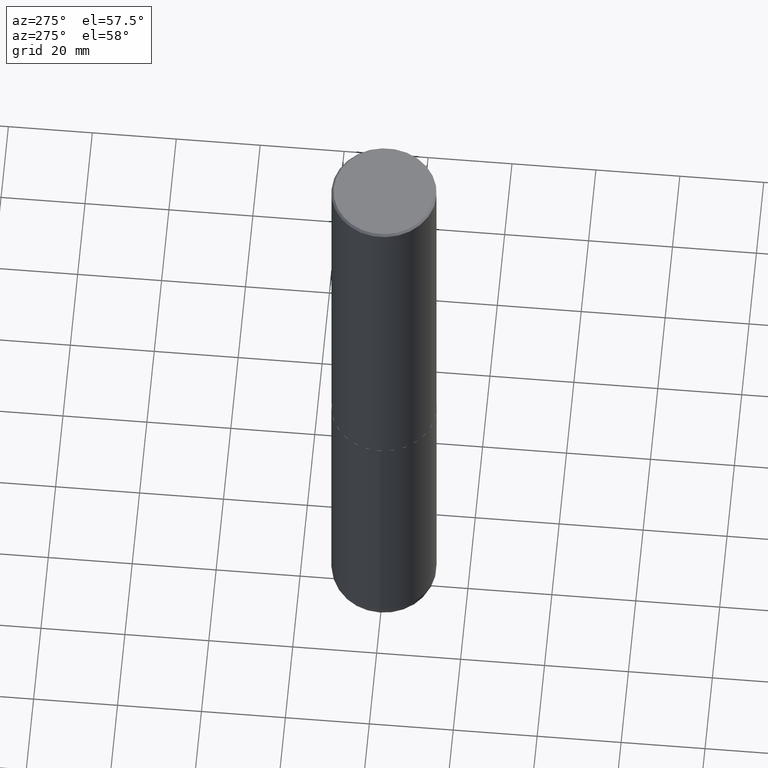
[diagram: clean part render]
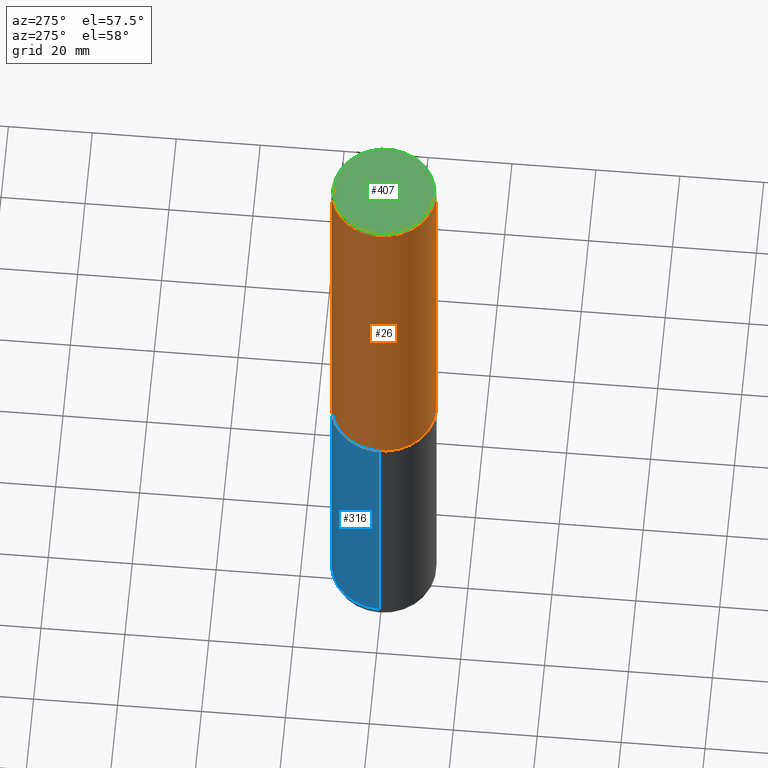
[diagram: same view with three faces highlighted in distinct colors, each labeled with its STEP entity id]
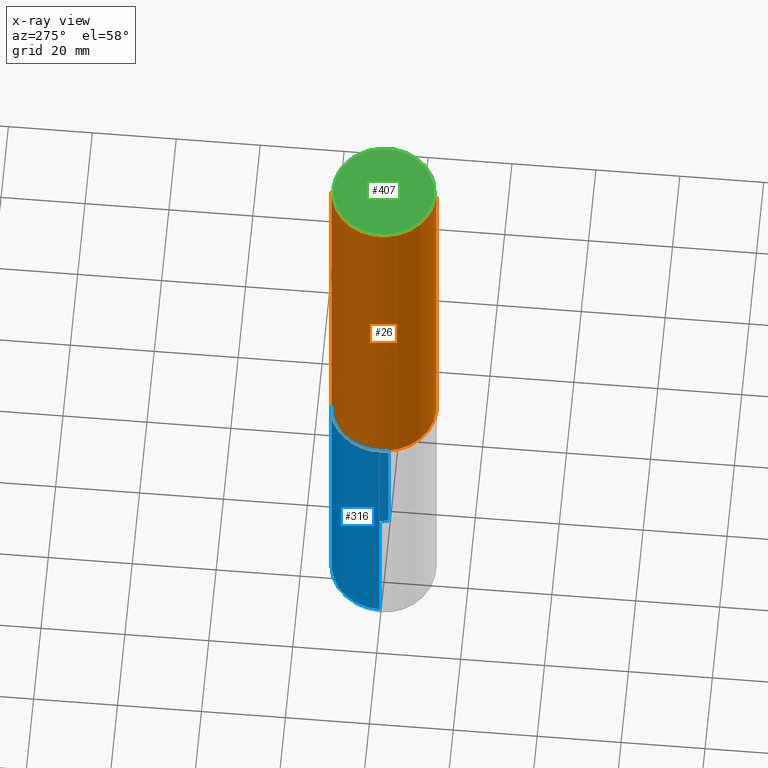
[diagram: x-ray of the same camera — body ghosted, the three highlighted faces saturated]
A machine part, auxiliary view with three faces highlighted in distinct colors.
The next image is the same camera in x-ray (body ghosted, the three faces saturated) — at least one of them is partly hidden behind the body in this view.
Their STEP definitions:

[orange] entity #26 — the highlighted cylindrical surface (partial cylindrical patch) has radius 12.5006 mm, axis along (-0, 0, 1).
#1 = VECTOR ( 'NONE', #215, 39.37007874015748143 ) ;
#26 = ADVANCED_FACE ( 'NONE', ( #55 ), #128, .T. ) ;
#28 = AXIS2_PLACEMENT_3D ( 'NONE', #51, #34, #194 ) ;
#34 = DIRECTION ( 'NONE',  ( -2.445976594451651952E-29, 3.490754157143982552E-15, 1.000000000000000000 ) ) ;
#37 = CARTESIAN_POINT ( 'NONE',  ( -3.436665081823207030E-15, -0.4921500000000134101, -3.739099999999998758 ) ) ;
#48 = VERTEX_POINT ( 'NONE', #37 ) ;
#51 = CARTESIAN_POINT ( 'NONE',  ( 0.000000000000000000, 0.000000000000000000, 0.000000000000000000 ) ) ;
#55 = FACE_OUTER_BOUND ( 'NONE', #227, .T. ) ;
#77 = CARTESIAN_POINT ( 'NONE',  ( 3.496936074043333291E-15, 0.4921500000000000874, -1.717974658438411319E-15 ) ) ;
#82 = AXIS2_PLACEMENT_3D ( 'NONE', #91, #276, #298 ) ;
#91 = CARTESIAN_POINT ( 'NONE',  ( 4.891953188903329688E-31, -6.981508314288001687E-17, -0.02000000000000010797 ) ) ;
#94 = ORIENTED_EDGE ( 'NONE', *, *, #164, .T. ) ;
#98 = LINE ( 'NONE', #77, #1 ) ;
#105 = DIRECTION ( 'NONE',  ( -6.982962677686265922E-15, -1.000000000000000000, 3.330506545156063496E-15 ) ) ;
#125 = VERTEX_POINT ( 'NONE', #249 ) ;
#128 = CYLINDRICAL_SURFACE ( 'NONE', #28, 0.4921500000000000874 ) ;
#131 = LINE ( 'NONE', #266, #240 ) ;
#145 = ORIENTED_EDGE ( 'NONE', *, *, #353, .F. ) ;
#152 = CIRCLE ( 'NONE', #82, 0.4921499999999999209 ) ;
#164 = EDGE_CURVE ( 'NONE', #125, #48, #254, .T. ) ;
#183 = EDGE_CURVE ( 'NONE', #125, #332, #98, .T. ) ;
#194 = DIRECTION ( 'NONE',  ( -6.982962677686265922E-15, -1.000000000000000000, 3.490754157143982552E-15 ) ) ;
#213 = CARTESIAN_POINT ( 'NONE',  ( 9.145751084314172604E-29, -1.305227886897706845E-14, -3.739100000000000534 ) ) ;
#215 = DIRECTION ( 'NONE',  ( -2.445976594451651672E-29, 3.490754157143982552E-15, 1.000000000000000000 ) ) ;
#224 = AXIS2_PLACEMENT_3D ( 'NONE', #213, #277, #105 ) ;
#226 = EDGE_CURVE ( 'NONE', #48, #321, #131, .T. ) ;
#227 = EDGE_LOOP ( 'NONE', ( #255, #94, #408, #145 ) ) ;
#240 = VECTOR ( 'NONE', #346, 39.37007874015748143 ) ;
#249 = CARTESIAN_POINT ( 'NONE',  ( 3.496936074043380229E-15, 0.4921499999999873198, -3.739100000000002311 ) ) ;
#254 = CIRCLE ( 'NONE', #224, 0.4921500000000003650 ) ;
#255 = ORIENTED_EDGE ( 'NONE', *, *, #183, .F. ) ;
#266 = CARTESIAN_POINT ( 'NONE',  ( -3.436665081823296565E-15, -0.4921500000000000874, 1.717974658438411319E-15 ) ) ;
#276 = DIRECTION ( 'NONE',  ( -2.445976594451651952E-29, 3.490754157143982552E-15, 1.000000000000000000 ) ) ;
#277 = DIRECTION ( 'NONE',  ( -2.445976594451651952E-29, 3.490754157143982552E-15, 1.000000000000000000 ) ) ;
#298 = DIRECTION ( 'NONE',  ( -6.982962677686265922E-15, -1.000000000000000000, 3.486624039460257331E-15 ) ) ;
#321 = VERTEX_POINT ( 'NONE', #387 ) ;
#332 = VERTEX_POINT ( 'NONE', #382 ) ;
#346 = DIRECTION ( 'NONE',  ( -2.445976594451651672E-29, 3.490754157143982552E-15, 1.000000000000000000 ) ) ;
#353 = EDGE_CURVE ( 'NONE', #332, #321, #152, .T. ) ;
#382 = CARTESIAN_POINT ( 'NONE',  ( 3.436665081823295777E-15, 0.4921499999999998098, -0.02000000000000182188 ) ) ;
#387 = CARTESIAN_POINT ( 'NONE',  ( -3.376394089603257868E-15, -0.4921499999999999764, -0.01999999999999839059 ) ) ;
#408 = ORIENTED_EDGE ( 'NONE', *, *, #226, .T. ) ;

[blue] entity #316 — the highlighted cylindrical surface (partial cylindrical patch) has radius 12.5006 mm, axis along (-0, 0, 1).
#8 = AXIS2_PLACEMENT_3D ( 'NONE', #284, #12, #404 ) ;
#12 = DIRECTION ( 'NONE',  ( -2.445468806185136597E-29, 3.491481338843145583E-15, 1.000000000000000000 ) ) ;
#15 = LINE ( 'NONE', #120, #253 ) ;
#19 = ORIENTED_EDGE ( 'NONE', *, *, #69, .F. ) ;
#24 = DIRECTION ( 'NONE',  ( -2.445468806185136597E-29, 3.491481338843145583E-15, 1.000000000000000000 ) ) ;
#38 = EDGE_CURVE ( 'NONE', #251, #149, #287, .T. ) ;
#42 = EDGE_CURVE ( 'NONE', #251, #85, #264, .T. ) ;
#49 = VERTEX_POINT ( 'NONE', #383 ) ;
#50 = CARTESIAN_POINT ( 'NONE',  ( 0.4921499999999999764, -1.649515443723054663E-14, -3.740100000000000424 ) ) ;
#56 = CARTESIAN_POINT ( 'NONE',  ( 0.4921499999999997543, -2.611732785894836787E-14, -6.495999999999999552 ) ) ;
#61 = ORIENTED_EDGE ( 'NONE', *, *, #42, .F. ) ;
#69 = EDGE_CURVE ( 'NONE', #85, #49, #331, .T. ) ;
#72 = EDGE_CURVE ( 'NONE', #149, #49, #15, .T. ) ;
#84 = DIRECTION ( 'NONE',  ( -2.445468806185136877E-29, 3.491481338843145188E-15, 1.000000000000000000 ) ) ;
#85 = VERTEX_POINT ( 'NONE', #50 ) ;
#86 = FACE_OUTER_BOUND ( 'NONE', #291, .T. ) ;
#89 = VECTOR ( 'NONE', #90, 39.37007874015748143 ) ;
#90 = DIRECTION ( 'NONE',  ( -2.445468806185136877E-29, 3.491481338843145188E-15, 1.000000000000000000 ) ) ;
#103 = CARTESIAN_POINT ( 'NONE',  ( -0.4921499999999997543, -1.918372670308173998E-14, -6.495999999999999552 ) ) ;
#120 = CARTESIAN_POINT ( 'NONE',  ( -0.4921499999999999764, 3.496936074043332897E-15, -2.420853904668951509E-29 ) ) ;
#127 = CARTESIAN_POINT ( 'NONE',  ( 0.000000000000000000, 0.000000000000000000, 0.000000000000000000 ) ) ;
#149 = VERTEX_POINT ( 'NONE', #103 ) ;
#151 = CYLINDRICAL_SURFACE ( 'NONE', #385, 0.4921499999999999764 ) ;
#155 = DIRECTION ( 'NONE',  ( 1.000000000000000000, -6.982962677686265922E-15, 0.000000000000000000 ) ) ;
#160 = CARTESIAN_POINT ( 'NONE',  ( 1.588576536497864771E-28, -2.268066277712507367E-14, -6.495999999999999552 ) ) ;
#206 = AXIS2_PLACEMENT_3D ( 'NONE', #160, #24, #155 ) ;
#229 = DIRECTION ( 'NONE',  ( -2.445468806185136597E-29, 3.491481338843145583E-15, 1.000000000000000000 ) ) ;
#251 = VERTEX_POINT ( 'NONE', #56 ) ;
#253 = VECTOR ( 'NONE', #84, 39.37007874015748143 ) ;
#264 = LINE ( 'NONE', #377, #89 ) ;
#284 = CARTESIAN_POINT ( 'NONE',  ( 9.146297882013029477E-29, -1.305848935540725085E-14, -3.740100000000000424 ) ) ;
#287 = CIRCLE ( 'NONE', #206, 0.4921499999999999764 ) ;
#290 = ORIENTED_EDGE ( 'NONE', *, *, #72, .T. ) ;
#291 = EDGE_LOOP ( 'NONE', ( #343, #290, #19, #61 ) ) ;
#316 = ADVANCED_FACE ( 'NONE', ( #86 ), #151, .T. ) ;
#331 = CIRCLE ( 'NONE', #8, 0.4921499999999999764 ) ;
#343 = ORIENTED_EDGE ( 'NONE', *, *, #38, .T. ) ;
#352 = DIRECTION ( 'NONE',  ( 1.000000000000000000, -6.982962677686265922E-15, 4.876176775795935793E-29 ) ) ;
#377 = CARTESIAN_POINT ( 'NONE',  ( 0.4921499999999999764, -3.436665081823295777E-15, 2.399810400207969603E-29 ) ) ;
#383 = CARTESIAN_POINT ( 'NONE',  ( -0.4921499999999999764, -1.437263999222282936E-14, -3.740100000000000424 ) ) ;
#385 = AXIS2_PLACEMENT_3D ( 'NONE', #127, #229, #352 ) ;
#404 = DIRECTION ( 'NONE',  ( 1.000000000000000000, -6.982962677686265922E-15, 0.000000000000000000 ) ) ;

[green] entity #407 — the highlighted planar face has unit normal (0, -0, -1).
#16 = EDGE_LOOP ( 'NONE', ( #21, #373 ) ) ;
#21 = ORIENTED_EDGE ( 'NONE', *, *, #374, .T. ) ;
#35 = DIRECTION ( 'NONE',  ( -2.445976594451651952E-29, 3.490754157143982552E-15, 1.000000000000000000 ) ) ;
#39 = CARTESIAN_POINT ( 'NONE',  ( -5.420756467185317189E-45, 7.736185299407739239E-31, 2.216193106459615290E-16 ) ) ;
#46 = CIRCLE ( 'NONE', #141, 0.4721499999999996255 ) ;
#92 = AXIS2_PLACEMENT_3D ( 'NONE', #39, #35, #174 ) ;
#99 = EDGE_CURVE ( 'NONE', #217, #201, #46, .T. ) ;
#134 = DIRECTION ( 'NONE',  ( 6.982962677686265922E-15, 1.000000000000000000, -3.490754157143982552E-15 ) ) ;
#141 = AXIS2_PLACEMENT_3D ( 'NONE', #398, #311, #143 ) ;
#143 = DIRECTION ( 'NONE',  ( -6.982962677686265922E-15, -1.000000000000000000, 3.490754157143982946E-15 ) ) ;
#159 = CARTESIAN_POINT ( 'NONE',  ( -3.307789109625541747E-15, -0.4721499999999996255, 1.869778885941491673E-15 ) ) ;
#166 = CARTESIAN_POINT ( 'NONE',  ( 3.366835455046432084E-15, 0.4721499999999996255, -1.426540264649568516E-15 ) ) ;
#168 = CARTESIAN_POINT ( 'NONE',  ( 3.297005828269567997E-15, 0.4721499999999996255, -1.537349919972549256E-15 ) ) ;
#174 = DIRECTION ( 'NONE',  ( -6.982962677686265922E-15, -1.000000000000000000, 3.490754157143982946E-15 ) ) ;
#185 = AXIS2_PLACEMENT_3D ( 'NONE', #168, #335, #134 ) ;
#201 = VERTEX_POINT ( 'NONE', #166 ) ;
#217 = VERTEX_POINT ( 'NONE', #159 ) ;
#265 = FACE_OUTER_BOUND ( 'NONE', #16, .T. ) ;
#311 = DIRECTION ( 'NONE',  ( -2.445976594451651952E-29, 3.490754157143982552E-15, 1.000000000000000000 ) ) ;
#335 = DIRECTION ( 'NONE',  ( 2.445976594451651392E-29, -3.490754157143982552E-15, -1.000000000000000000 ) ) ;
#348 = PLANE ( 'NONE',  #185 ) ;
#373 = ORIENTED_EDGE ( 'NONE', *, *, #99, .T. ) ;
#374 = EDGE_CURVE ( 'NONE', #201, #217, #397, .T. ) ;
#397 = CIRCLE ( 'NONE', #92, 0.4721499999999996255 ) ;
#398 = CARTESIAN_POINT ( 'NONE',  ( -5.420756467185317189E-45, 7.736185299407739239E-31, 2.216193106459615290E-16 ) ) ;
#407 = ADVANCED_FACE ( 'NONE', ( #265 ), #348, .F. ) ;